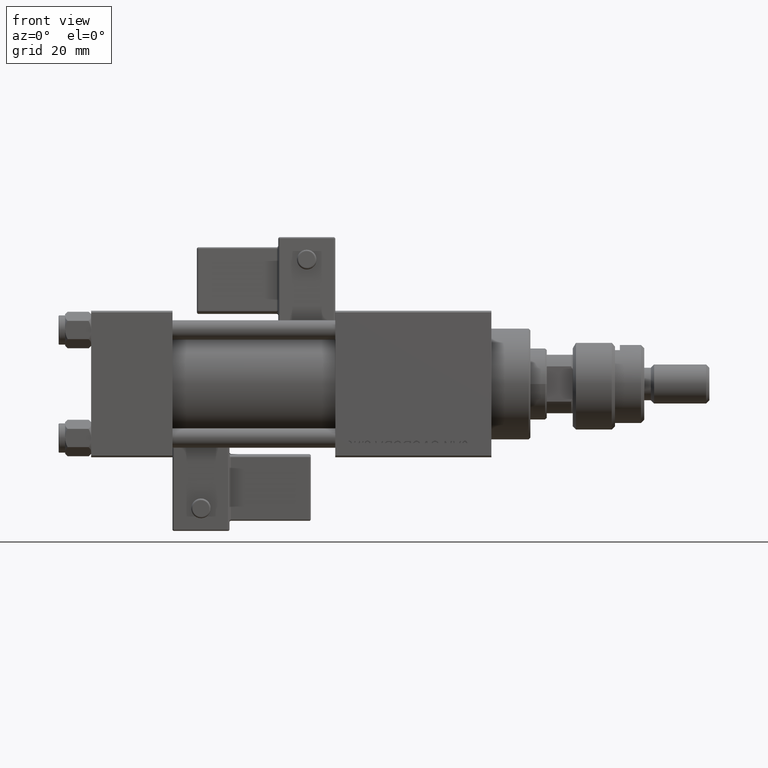
[diagram: clean part render]
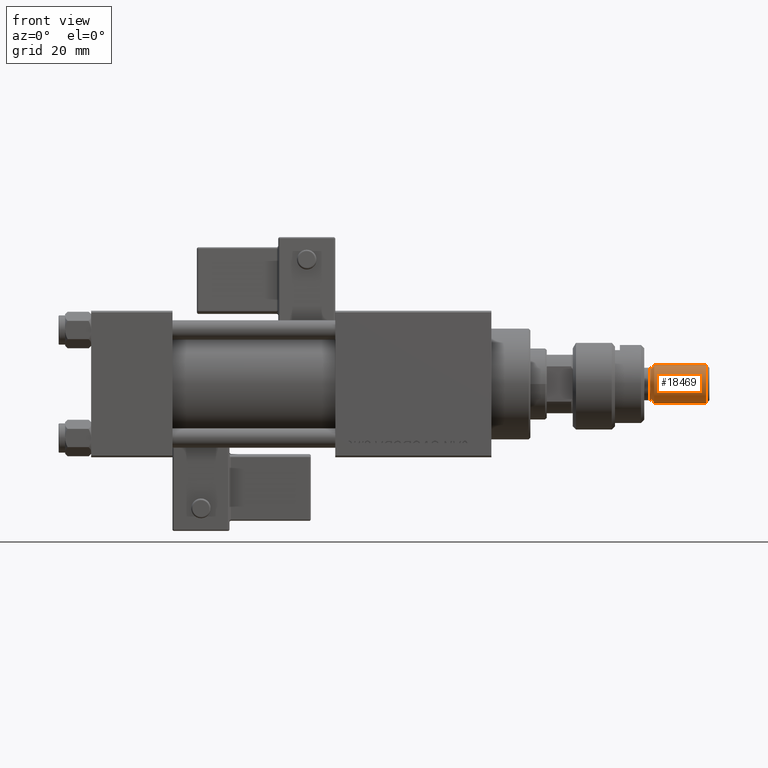
[diagram: same view with one face highlighted and labeled with its STEP entity id]
A machine part, front view. The second image highlights one B-rep face of the part: STEP entity #18469.
In plain terms, the highlighted cylindrical surface (edge-blend (fillet) strip) has radius 6 mm, axis along (-1, -0, 0).
Its self-contained STEP definition (entity closure, byte-faithful):
#965 = EDGE_CURVE ( 'NONE', #26097, #7067, #47440, .T. ) ;
#1005 = CIRCLE ( 'NONE', #22708, 6.000000000000000888 ) ;
#1428 = CYLINDRICAL_SURFACE ( 'NONE', #51067, 6.000000000000000888 ) ;
#7067 = VERTEX_POINT ( 'NONE', #24816 ) ;
#7669 = DIRECTION ( 'NONE',  ( 0.000000000000000000, 0.000000000000000000, -1.000000000000000000 ) ) ;
#7946 = ORIENTED_EDGE ( 'NONE', *, *, #40156, .F. ) ;
#11148 = CARTESIAN_POINT ( 'NONE',  ( 6.000000000000000888, 7.347880794884120722E-16, 24.99999999999999645 ) ) ;
#11498 = VERTEX_POINT ( 'NONE', #43546 ) ;
#15526 = CARTESIAN_POINT ( 'NONE',  ( 0.000000000000000000, 0.000000000000000000, 24.99999999999999645 ) ) ;
#16415 = DIRECTION ( 'NONE',  ( -0.000000000000000000, -0.000000000000000000, -1.000000000000000000 ) ) ;
#16956 = CARTESIAN_POINT ( 'NONE',  ( 6.000000000000000888, 7.347880794884120722E-16, 41.99999999999999289 ) ) ;
#18469 = ADVANCED_FACE ( 'NONE', ( #22101 ), #1428, .T. ) ;
#20808 = VECTOR ( 'NONE', #16415, 1000.000000000000000 ) ;
#21935 = CIRCLE ( 'NONE', #52311, 6.000000000000000888 ) ;
#22101 = FACE_OUTER_BOUND ( 'NONE', #47308, .T. ) ;
#22708 = AXIS2_PLACEMENT_3D ( 'NONE', #15526, #36197, #48986 ) ;
#24816 = CARTESIAN_POINT ( 'NONE',  ( -6.000000000000000888, 0.000000000000000000, 24.99999999999999645 ) ) ;
#25071 = CARTESIAN_POINT ( 'NONE',  ( 0.000000000000000000, 0.000000000000000000, 40.99999999999997868 ) ) ;
#25991 = CARTESIAN_POINT ( 'NONE',  ( -6.000000000000000888, 0.000000000000000000, 41.99999999999999289 ) ) ;
#26097 = VERTEX_POINT ( 'NONE', #40492 ) ;
#30520 = DIRECTION ( 'NONE',  ( -1.000000000000000000, 0.000000000000000000, 0.000000000000000000 ) ) ;
#30778 = CARTESIAN_POINT ( 'NONE',  ( 0.000000000000000000, 0.000000000000000000, 41.99999999999999289 ) ) ;
#32991 = VERTEX_POINT ( 'NONE', #11148 ) ;
#36197 = DIRECTION ( 'NONE',  ( -0.000000000000000000, -0.000000000000000000, 1.000000000000000000 ) ) ;
#38150 = DIRECTION ( 'NONE',  ( -0.000000000000000000, -0.000000000000000000, -1.000000000000000000 ) ) ;
#38176 = LINE ( 'NONE', #16956, #20808 ) ;
#40156 = EDGE_CURVE ( 'NONE', #11498, #32991, #38176, .T. ) ;
#40492 = CARTESIAN_POINT ( 'NONE',  ( -6.000000000000000888, 0.000000000000000000, 40.99999999999997868 ) ) ;
#40851 = DIRECTION ( 'NONE',  ( 1.000000000000000000, 0.000000000000000000, 0.000000000000000000 ) ) ;
#41617 = VECTOR ( 'NONE', #42549, 1000.000000000000000 ) ;
#42549 = DIRECTION ( 'NONE',  ( -0.000000000000000000, -0.000000000000000000, -1.000000000000000000 ) ) ;
#43455 = ORIENTED_EDGE ( 'NONE', *, *, #47996, .T. ) ;
#43546 = CARTESIAN_POINT ( 'NONE',  ( 6.000000000000000888, 7.347880794884120722E-16, 40.99999999999997868 ) ) ;
#47308 = EDGE_LOOP ( 'NONE', ( #7946, #51818, #51868, #43455 ) ) ;
#47440 = LINE ( 'NONE', #25991, #41617 ) ;
#47996 = EDGE_CURVE ( 'NONE', #7067, #32991, #1005, .T. ) ;
#48986 = DIRECTION ( 'NONE',  ( 1.000000000000000000, 0.000000000000000000, 0.000000000000000000 ) ) ;
#49834 = EDGE_CURVE ( 'NONE', #11498, #26097, #21935, .T. ) ;
#51067 = AXIS2_PLACEMENT_3D ( 'NONE', #30778, #38150, #30520 ) ;
#51818 = ORIENTED_EDGE ( 'NONE', *, *, #49834, .T. ) ;
#51868 = ORIENTED_EDGE ( 'NONE', *, *, #965, .T. ) ;
#52311 = AXIS2_PLACEMENT_3D ( 'NONE', #25071, #7669, #40851 ) ;